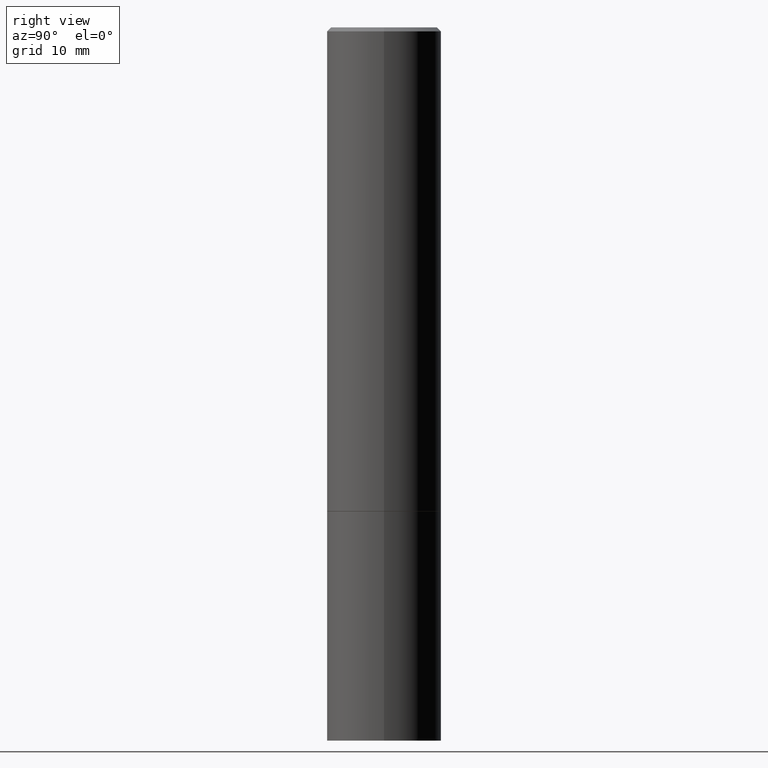
[diagram: clean part render]
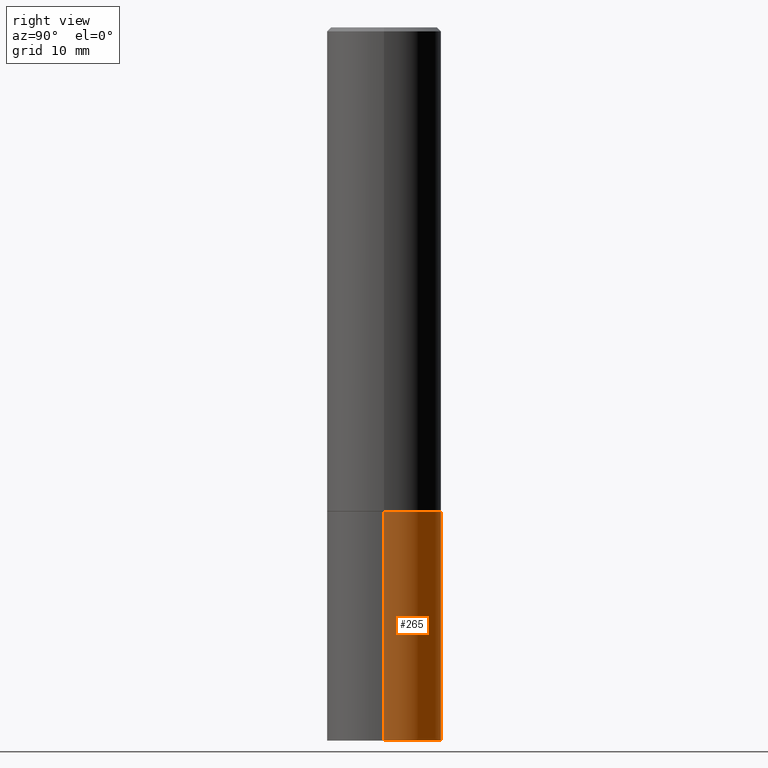
[diagram: same view with one face highlighted and labeled with its STEP entity id]
A machine part, right view. The second image highlights one B-rep face of the part: STEP entity #265.
In plain terms, the highlighted cylindrical surface (partial cylindrical patch) has radius 7.1437 mm, axis along (-0, 0, 1).
Its self-contained STEP definition (entity closure, byte-faithful):
#1 = DIRECTION ( 'NONE',  ( -2.445468806185136597E-29, 3.491481338843145583E-15, 1.000000000000000000 ) ) ;
#28 = VECTOR ( 'NONE', #112, 39.37007874015748143 ) ;
#30 = EDGE_CURVE ( 'NONE', #283, #171, #81, .T. ) ;
#31 = ORIENTED_EDGE ( 'NONE', *, *, #77, .F. ) ;
#77 = EDGE_CURVE ( 'NONE', #171, #108, #88, .T. ) ;
#81 = LINE ( 'NONE', #262, #28 ) ;
#88 = CIRCLE ( 'NONE', #363, 0.2812500000000000000 ) ;
#101 = AXIS2_PLACEMENT_3D ( 'NONE', #351, #214, #330 ) ;
#108 = VERTEX_POINT ( 'NONE', #225 ) ;
#112 = DIRECTION ( 'NONE',  ( -2.445468806185136877E-29, 3.491481338843145188E-15, 1.000000000000000000 ) ) ;
#133 = CYLINDRICAL_SURFACE ( 'NONE', #140, 0.2812500000000000000 ) ;
#139 = CARTESIAN_POINT ( 'NONE',  ( 0.000000000000000000, 0.000000000000000000, 0.000000000000000000 ) ) ;
#140 = AXIS2_PLACEMENT_3D ( 'NONE', #139, #1, #221 ) ;
#146 = VECTOR ( 'NONE', #317, 39.37007874015748143 ) ;
#171 = VERTEX_POINT ( 'NONE', #188 ) ;
#183 = DIRECTION ( 'NONE',  ( -2.445468806185136597E-29, 3.491481338843145583E-15, 1.000000000000000000 ) ) ;
#188 = CARTESIAN_POINT ( 'NONE',  ( 0.2812500000000000000, -1.025622643285173184E-14, -2.374999999999999556 ) ) ;
#194 = VERTEX_POINT ( 'NONE', #305 ) ;
#197 = CARTESIAN_POINT ( 'NONE',  ( -0.2812500000000000000, 1.998401444325281773E-15, -1.383450494134192269E-29 ) ) ;
#212 = EDGE_CURVE ( 'NONE', #283, #194, #286, .T. ) ;
#214 = DIRECTION ( 'NONE',  ( -2.445468806185136597E-29, 3.491481338843145583E-15, 1.000000000000000000 ) ) ;
#215 = EDGE_LOOP ( 'NONE', ( #252, #352, #31, #241 ) ) ;
#221 = DIRECTION ( 'NONE',  ( 1.000000000000000000, -6.982962677686266711E-15, 4.876176775795935793E-29 ) ) ;
#225 = CARTESIAN_POINT ( 'NONE',  ( -0.2812500000000000000, -8.257824988526456379E-15, -2.374999999999999556 ) ) ;
#241 = ORIENTED_EDGE ( 'NONE', *, *, #30, .F. ) ;
#246 = DIRECTION ( 'NONE',  ( 1.000000000000000000, -6.982962677686269866E-15, 0.000000000000000000 ) ) ;
#249 = EDGE_CURVE ( 'NONE', #194, #108, #341, .T. ) ;
#252 = ORIENTED_EDGE ( 'NONE', *, *, #212, .T. ) ;
#262 = CARTESIAN_POINT ( 'NONE',  ( 0.2812500000000000000, -1.963958253099262512E-15, 1.371424718192607012E-29 ) ) ;
#265 = ADVANCED_FACE ( 'NONE', ( #284 ), #133, .T. ) ;
#283 = VERTEX_POINT ( 'NONE', #339 ) ;
#284 = FACE_OUTER_BOUND ( 'NONE', #215, .T. ) ;
#286 = CIRCLE ( 'NONE', #101, 0.2812500000000000000 ) ;
#303 = CARTESIAN_POINT ( 'NONE',  ( 5.807988414689698296E-29, -8.292268179752468540E-15, -2.374999999999999556 ) ) ;
#305 = CARTESIAN_POINT ( 'NONE',  ( -0.2812500000000000000, -8.257824988526456379E-15, -3.500000000000000000 ) ) ;
#317 = DIRECTION ( 'NONE',  ( -2.445468806185136877E-29, 3.491481338843145188E-15, 1.000000000000000000 ) ) ;
#330 = DIRECTION ( 'NONE',  ( 1.000000000000000000, -6.982962677686269866E-15, 0.000000000000000000 ) ) ;
#339 = CARTESIAN_POINT ( 'NONE',  ( 0.2812500000000000000, -1.418414293905027264E-14, -3.500000000000000000 ) ) ;
#341 = LINE ( 'NONE', #197, #146 ) ;
#351 = CARTESIAN_POINT ( 'NONE',  ( 8.559140821647976968E-29, -1.222018468595100934E-14, -3.500000000000000000 ) ) ;
#352 = ORIENTED_EDGE ( 'NONE', *, *, #249, .T. ) ;
#363 = AXIS2_PLACEMENT_3D ( 'NONE', #303, #183, #246 ) ;